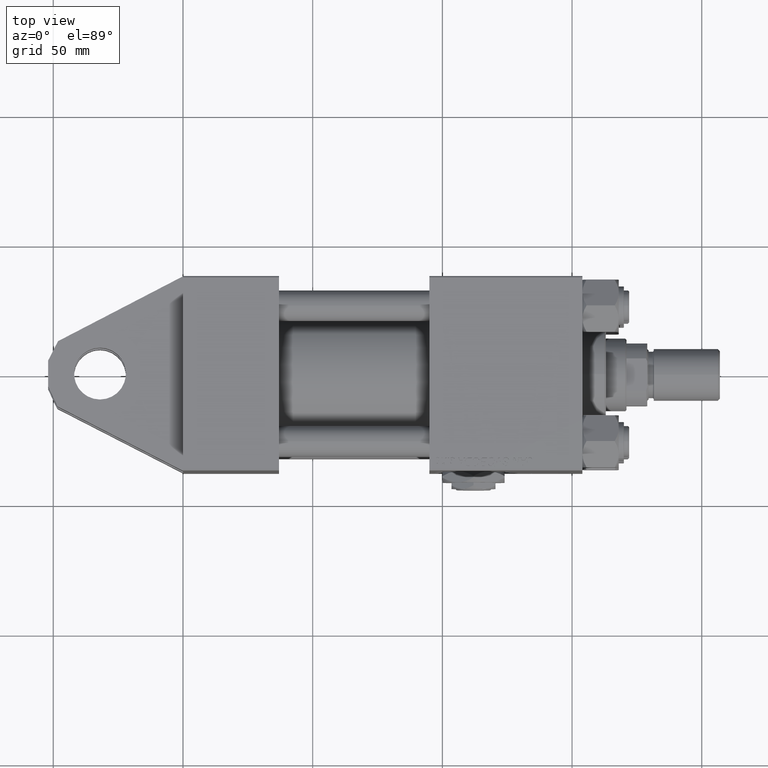
[diagram: clean part render]
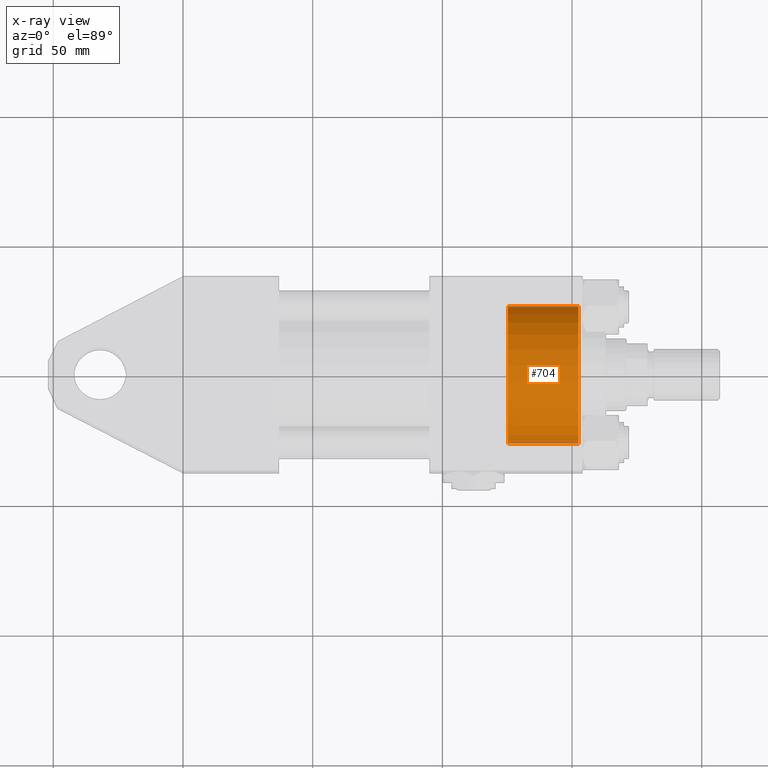
[diagram: x-ray — body ghosted, one internal face saturated and labeled with its STEP entity id]
A machine part, top view, then the same camera in x-ray: the body is ghosted and one INTERNAL B-rep face — a face not visible from any outside direction — is saturated and labeled: STEP entity #704.
In plain terms, the highlighted cylindrical surface (partial cylindrical patch) has radius 26.5 mm, axis along (1, 0, 0).
Its self-contained STEP definition (entity closure, byte-faithful):
#118 = VERTEX_POINT ( 'NONE', #6249 ) ;
#704 = ADVANCED_FACE ( 'NONE', ( #43577 ), #10530, .F. ) ;
#1618 = CIRCLE ( 'NONE', #50224, 26.50000000000000355 ) ;
#5443 = DIRECTION ( 'NONE',  ( 1.000000000000000000, -0.000000000000000000, -0.000000000000000000 ) ) ;
#6249 = CARTESIAN_POINT ( 'NONE',  ( 152.5000000000000568, 3.245314017740486554E-15, 26.50000000000000355 ) ) ;
#8763 = EDGE_CURVE ( 'NONE', #28456, #9180, #26174, .T. ) ;
#9180 = VERTEX_POINT ( 'NONE', #14191 ) ;
#10530 = CYLINDRICAL_SURFACE ( 'NONE', #25579, 26.50000000000000355 ) ;
#13914 = LINE ( 'NONE', #30195, #49355 ) ;
#14168 = ORIENTED_EDGE ( 'NONE', *, *, #33702, .T. ) ;
#14191 = CARTESIAN_POINT ( 'NONE',  ( 152.5000000000000568, 0.000000000000000000, -26.50000000000000355 ) ) ;
#16130 = CARTESIAN_POINT ( 'NONE',  ( 125.2999999999999972, 0.000000000000000000, 0.000000000000000000 ) ) ;
#16833 = EDGE_CURVE ( 'NONE', #22291, #118, #13914, .T. ) ;
#18098 = AXIS2_PLACEMENT_3D ( 'NONE', #16130, #48117, #24509 ) ;
#19960 = DIRECTION ( 'NONE',  ( 0.000000000000000000, 0.000000000000000000, 1.000000000000000000 ) ) ;
#22291 = VERTEX_POINT ( 'NONE', #35143 ) ;
#24509 = DIRECTION ( 'NONE',  ( 0.000000000000000000, 0.000000000000000000, -1.000000000000000000 ) ) ;
#24939 = EDGE_CURVE ( 'NONE', #22291, #28456, #36526, .T. ) ;
#25579 = AXIS2_PLACEMENT_3D ( 'NONE', #39375, #31502, #46458 ) ;
#25709 = DIRECTION ( 'NONE',  ( 1.000000000000000000, -0.000000000000000000, -0.000000000000000000 ) ) ;
#26174 = LINE ( 'NONE', #45589, #28261 ) ;
#28261 = VECTOR ( 'NONE', #5443, 1000.000000000000000 ) ;
#28456 = VERTEX_POINT ( 'NONE', #51205 ) ;
#30195 = CARTESIAN_POINT ( 'NONE',  ( 125.2999999999999972, 3.245314017740486554E-15, 26.50000000000000355 ) ) ;
#31502 = DIRECTION ( 'NONE',  ( 1.000000000000000000, -0.000000000000000000, -0.000000000000000000 ) ) ;
#33702 = EDGE_CURVE ( 'NONE', #118, #9180, #1618, .T. ) ;
#35143 = CARTESIAN_POINT ( 'NONE',  ( 125.2999999999999972, 3.245314017740486554E-15, 26.50000000000000355 ) ) ;
#36526 = CIRCLE ( 'NONE', #18098, 26.50000000000000355 ) ;
#36538 = ORIENTED_EDGE ( 'NONE', *, *, #24939, .F. ) ;
#39375 = CARTESIAN_POINT ( 'NONE',  ( 125.2999999999999972, 0.000000000000000000, 0.000000000000000000 ) ) ;
#39637 = DIRECTION ( 'NONE',  ( 1.000000000000000000, 0.000000000000000000, 0.000000000000000000 ) ) ;
#40887 = ORIENTED_EDGE ( 'NONE', *, *, #8763, .F. ) ;
#43577 = FACE_OUTER_BOUND ( 'NONE', #44960, .T. ) ;
#43906 = ORIENTED_EDGE ( 'NONE', *, *, #16833, .T. ) ;
#44615 = CARTESIAN_POINT ( 'NONE',  ( 152.5000000000000568, 0.000000000000000000, 0.000000000000000000 ) ) ;
#44960 = EDGE_LOOP ( 'NONE', ( #36538, #43906, #14168, #40887 ) ) ;
#45589 = CARTESIAN_POINT ( 'NONE',  ( 125.2999999999999972, 0.000000000000000000, -26.50000000000000355 ) ) ;
#46458 = DIRECTION ( 'NONE',  ( 0.000000000000000000, 0.000000000000000000, -1.000000000000000000 ) ) ;
#48117 = DIRECTION ( 'NONE',  ( 1.000000000000000000, 0.000000000000000000, 0.000000000000000000 ) ) ;
#49355 = VECTOR ( 'NONE', #25709, 1000.000000000000000 ) ;
#50224 = AXIS2_PLACEMENT_3D ( 'NONE', #44615, #39637, #19960 ) ;
#51205 = CARTESIAN_POINT ( 'NONE',  ( 125.2999999999999972, 0.000000000000000000, -26.50000000000000355 ) ) ;